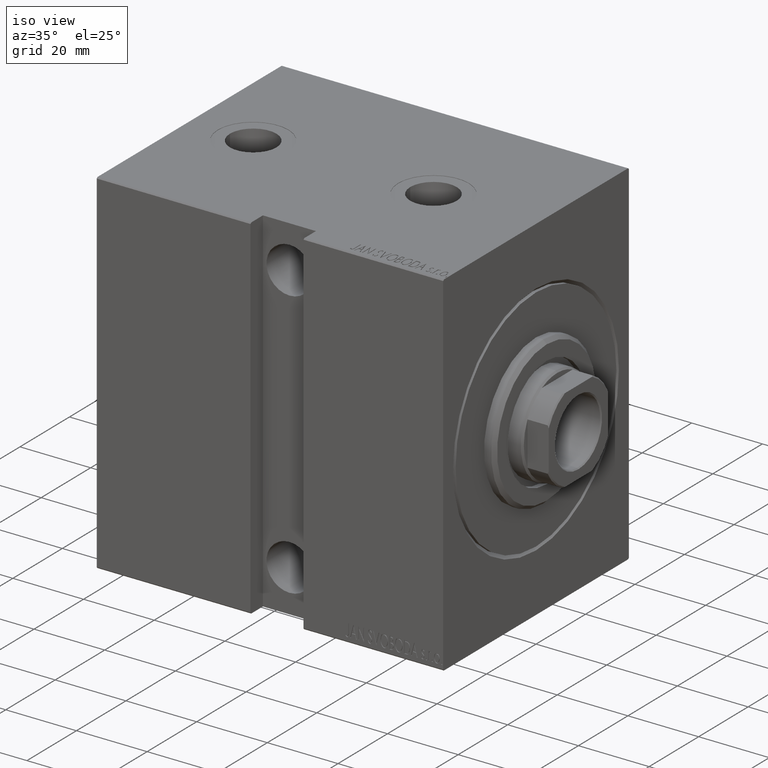
[diagram: clean part render]
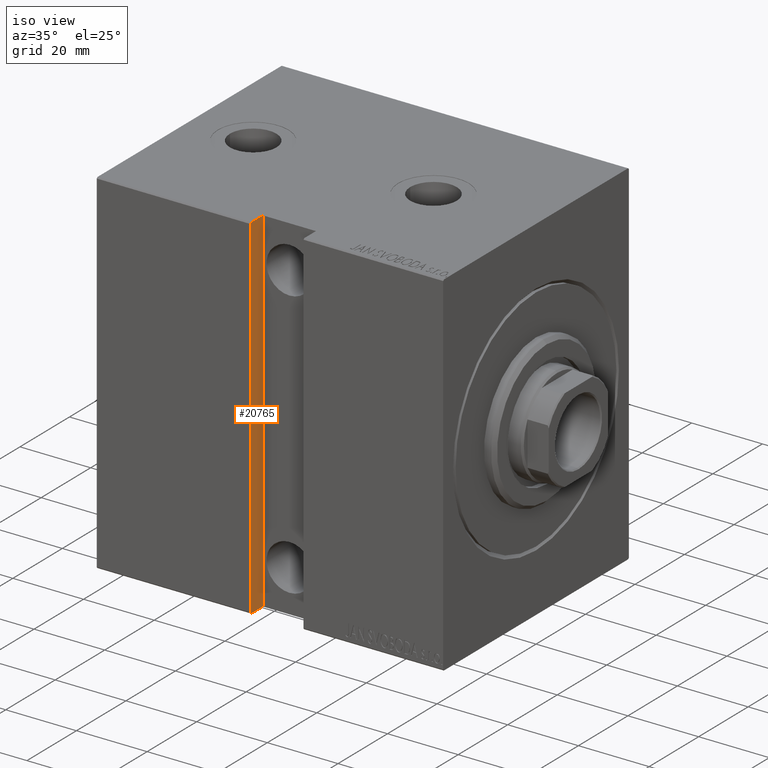
[diagram: same view with one face highlighted and labeled with its STEP entity id]
A machine part, iso view. The second image highlights one B-rep face of the part: STEP entity #20765.
In plain terms, the highlighted planar face has unit normal (-1, 0, -0).
Its self-contained STEP definition (entity closure, byte-faithful):
#964 = VECTOR ( 'NONE', #41683, 1000.000000000000000 ) ;
#1055 = VERTEX_POINT ( 'NONE', #8203 ) ;
#1348 = EDGE_CURVE ( 'NONE', #32999, #15580, #22397, .T. ) ;
#1837 = VERTEX_POINT ( 'NONE', #12346 ) ;
#4182 = EDGE_CURVE ( 'NONE', #1055, #1837, #32763, .T. ) ;
#5047 = VECTOR ( 'NONE', #19390, 1000.000000000000000 ) ;
#7759 = FACE_OUTER_BOUND ( 'NONE', #16674, .T. ) ;
#8203 = CARTESIAN_POINT ( 'NONE',  ( 54.50000000000001421, 32.50000000000000000, 49.99999999999999289 ) ) ;
#8641 = CARTESIAN_POINT ( 'NONE',  ( 54.50000000000000000, 32.50000000000000000, -50.00000000000000711 ) ) ;
#9188 = CARTESIAN_POINT ( 'NONE',  ( 54.50000000000000000, 37.19999999999998863, -50.00000000000000711 ) ) ;
#9448 = VERTEX_POINT ( 'NONE', #42639 ) ;
#9778 = ORIENTED_EDGE ( 'NONE', *, *, #22249, .F. ) ;
#10257 = CARTESIAN_POINT ( 'NONE',  ( 54.50000000000000000, 37.50000000000000000, -50.00000000000000711 ) ) ;
#10888 = DIRECTION ( 'NONE',  ( -1.387778780781445676E-16, -0.000000000000000000, -1.000000000000000000 ) ) ;
#11066 = DIRECTION ( 'NONE',  ( -0.000000000000000000, 1.000000000000000000, -0.000000000000000000 ) ) ;
#11397 = VECTOR ( 'NONE', #11066, 1000.000000000000000 ) ;
#11531 = CARTESIAN_POINT ( 'NONE',  ( 54.50000000000001421, 37.19999999999998153, 50.00000000000001421 ) ) ;
#12346 = CARTESIAN_POINT ( 'NONE',  ( 54.50000000000001421, 32.50000000000000711, -50.00000000000000711 ) ) ;
#13525 = AXIS2_PLACEMENT_3D ( 'NONE', #8641, #15309, #21785 ) ;
#13883 = CARTESIAN_POINT ( 'NONE',  ( 54.50000000000000000, 37.50000000000000000, -49.70000000000000284 ) ) ;
#14481 = LINE ( 'NONE', #28066, #964 ) ;
#14904 = ORIENTED_EDGE ( 'NONE', *, *, #23124, .T. ) ;
#15309 = DIRECTION ( 'NONE',  ( 1.000000000000000000, 0.000000000000000000, -1.387778780781445676E-16 ) ) ;
#15580 = VERTEX_POINT ( 'NONE', #9188 ) ;
#16109 = ORIENTED_EDGE ( 'NONE', *, *, #1348, .T. ) ;
#16674 = EDGE_LOOP ( 'NONE', ( #14904, #16109, #9778, #28922, #35146, #33744 ) ) ;
#17410 = VECTOR ( 'NONE', #10888, 1000.000000000000000 ) ;
#18023 = EDGE_CURVE ( 'NONE', #28903, #9448, #25994, .T. ) ;
#19390 = DIRECTION ( 'NONE',  ( -1.387778780781445676E-16, -0.000000000000000000, -1.000000000000000000 ) ) ;
#20765 = ADVANCED_FACE ( 'NONE', ( #7759 ), #21334, .F. ) ;
#20903 = CARTESIAN_POINT ( 'NONE',  ( 54.50000000000000000, 32.50000000000000000, -50.00000000000000711 ) ) ;
#21334 = PLANE ( 'NONE',  #13525 ) ;
#21785 = DIRECTION ( 'NONE',  ( -1.387778780781445676E-16, 0.000000000000000000, -1.000000000000000000 ) ) ;
#22249 = EDGE_CURVE ( 'NONE', #1837, #15580, #41586, .T. ) ;
#22397 = LINE ( 'NONE', #43353, #25163 ) ;
#23124 = EDGE_CURVE ( 'NONE', #9448, #32999, #27168, .T. ) ;
#25107 = DIRECTION ( 'NONE',  ( -9.813077866773709115E-17, 0.7071067811865392461, -0.7071067811865556774 ) ) ;
#25163 = VECTOR ( 'NONE', #29748, 1000.000000000000114 ) ;
#25994 = LINE ( 'NONE', #11531, #26980 ) ;
#26980 = VECTOR ( 'NONE', #25107, 1000.000000000000114 ) ;
#27168 = LINE ( 'NONE', #10257, #5047 ) ;
#28066 = CARTESIAN_POINT ( 'NONE',  ( 54.50000000000001421, 32.50000000000000000, 49.99999999999999289 ) ) ;
#28636 = CARTESIAN_POINT ( 'NONE',  ( 54.50000000000000000, 32.50000000000000000, -50.00000000000000711 ) ) ;
#28903 = VERTEX_POINT ( 'NONE', #38855 ) ;
#28922 = ORIENTED_EDGE ( 'NONE', *, *, #4182, .F. ) ;
#29748 = DIRECTION ( 'NONE',  ( -9.813077866773479853E-17, -0.7071067811865556774, -0.7071067811865392461 ) ) ;
#32763 = LINE ( 'NONE', #20903, #17410 ) ;
#32999 = VERTEX_POINT ( 'NONE', #13883 ) ;
#33744 = ORIENTED_EDGE ( 'NONE', *, *, #18023, .T. ) ;
#34158 = EDGE_CURVE ( 'NONE', #1055, #28903, #14481, .T. ) ;
#35146 = ORIENTED_EDGE ( 'NONE', *, *, #34158, .T. ) ;
#38855 = CARTESIAN_POINT ( 'NONE',  ( 54.50000000000001421, 37.19999999999998153, 49.99999999999999289 ) ) ;
#41586 = LINE ( 'NONE', #28636, #11397 ) ;
#41683 = DIRECTION ( 'NONE',  ( -0.000000000000000000, 1.000000000000000000, -0.000000000000000000 ) ) ;
#42639 = CARTESIAN_POINT ( 'NONE',  ( 54.50000000000001421, 37.50000000000000000, 49.70000000000000284 ) ) ;
#43353 = CARTESIAN_POINT ( 'NONE',  ( 54.50000000000000000, 37.50000000000000711, -49.70000000000000284 ) ) ;